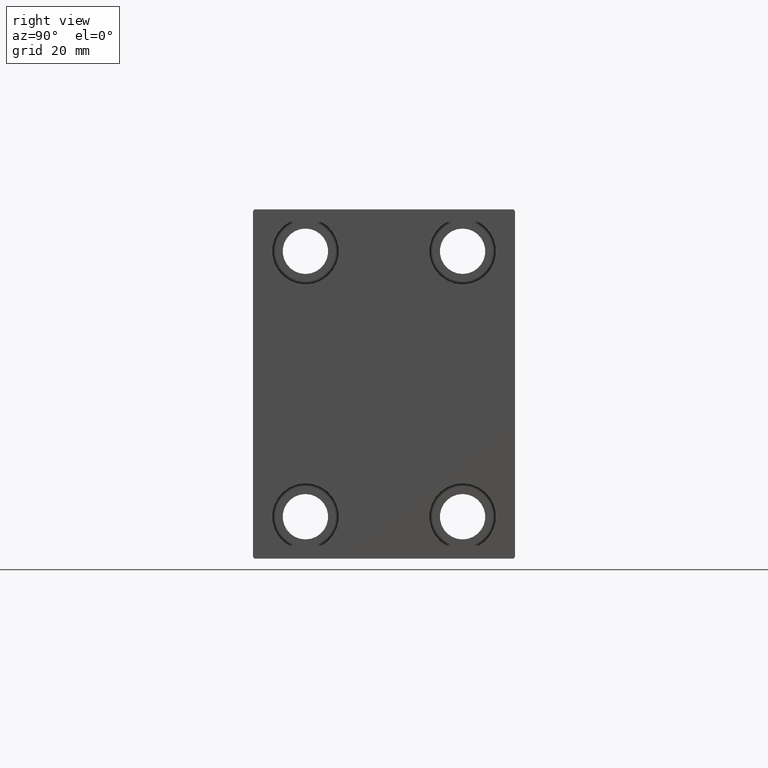
[diagram: clean part render]
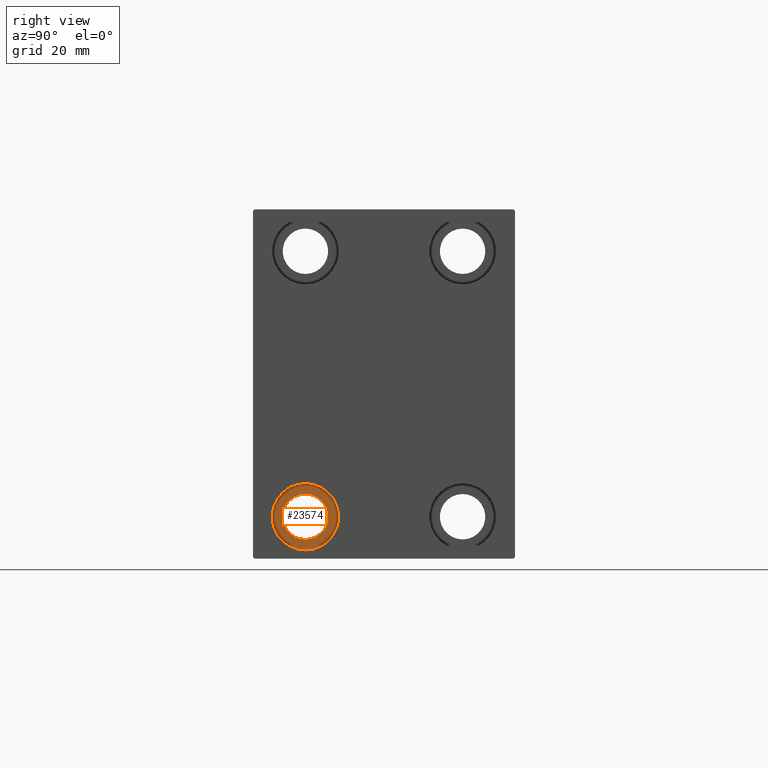
[diagram: same view with one face highlighted and labeled with its STEP entity id]
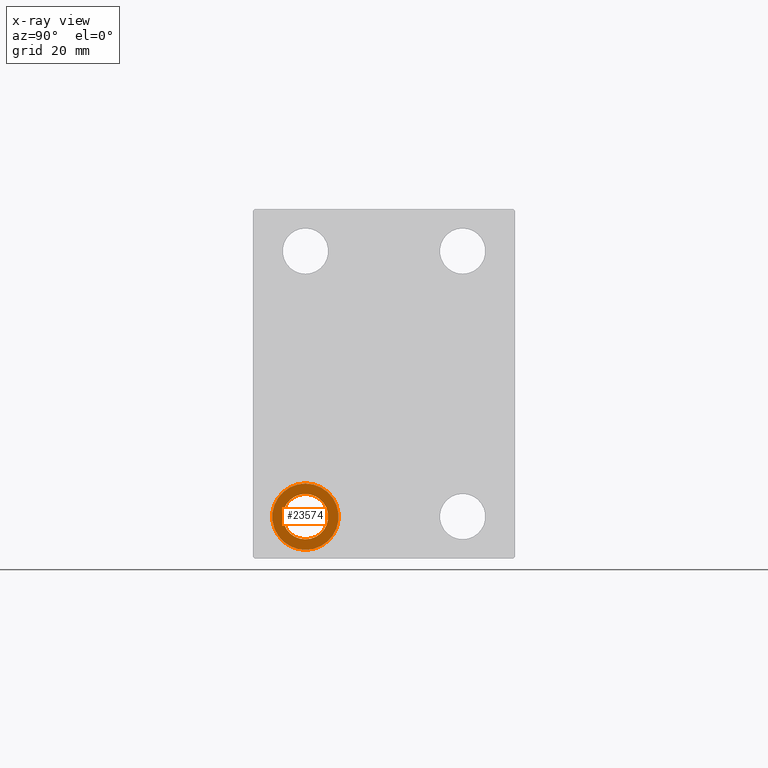
[diagram: x-ray of the same camera — body ghosted, the highlighted face saturated]
A machine part, right view. The second image highlights one B-rep face of the part: STEP entity #23574.
The next image is the same camera in x-ray: the body ghosted, the highlighted face saturated — about 0% of this face is hidden behind the body in this view.
In plain terms, the highlighted planar face has unit normal (1, 0, 0).
Its self-contained STEP definition (entity closure, byte-faithful):
#481 = EDGE_CURVE ( 'NONE', #7218, #21049, #41853, .T. ) ;
#998 = EDGE_CURVE ( 'NONE', #7786, #2786, #32295, .T. ) ;
#1530 = ORIENTED_EDGE ( 'NONE', *, *, #481, .F. ) ;
#1950 = PLANE ( 'NONE',  #33657 ) ;
#2786 = VERTEX_POINT ( 'NONE', #13735 ) ;
#3335 = ORIENTED_EDGE ( 'NONE', *, *, #33545, .F. ) ;
#3556 = AXIS2_PLACEMENT_3D ( 'NONE', #30080, #15761, #5386 ) ;
#4962 = DIRECTION ( 'NONE',  ( 1.000000000000000000, 0.000000000000000000, -0.000000000000000000 ) ) ;
#5386 = DIRECTION ( 'NONE',  ( 0.000000000000000000, 0.000000000000000000, 1.000000000000000000 ) ) ;
#7218 = VERTEX_POINT ( 'NONE', #33832 ) ;
#7786 = VERTEX_POINT ( 'NONE', #38031 ) ;
#9122 = FACE_OUTER_BOUND ( 'NONE', #30620, .T. ) ;
#13735 = CARTESIAN_POINT ( 'NONE',  ( 90.00000000000000000, -22.50000000000000711, -44.49999999999999289 ) ) ;
#15761 = DIRECTION ( 'NONE',  ( -1.000000000000000000, -0.000000000000000000, -0.000000000000000000 ) ) ;
#17930 = DIRECTION ( 'NONE',  ( 0.000000000000000000, 0.000000000000000000, 1.000000000000000000 ) ) ;
#18244 = AXIS2_PLACEMENT_3D ( 'NONE', #22161, #39724, #42976 ) ;
#18273 = CIRCLE ( 'NONE', #24163, 6.499999999999999112 ) ;
#20778 = EDGE_LOOP ( 'NONE', ( #42814, #31064 ) ) ;
#21049 = VERTEX_POINT ( 'NONE', #28850 ) ;
#21931 = AXIS2_PLACEMENT_3D ( 'NONE', #24398, #41736, #17930 ) ;
#22161 = CARTESIAN_POINT ( 'NONE',  ( 90.00000000000000000, -22.50000000000000711, -37.99999999999999289 ) ) ;
#23202 = DIRECTION ( 'NONE',  ( 0.000000000000000000, 0.000000000000000000, 1.000000000000000000 ) ) ;
#23478 = CIRCLE ( 'NONE', #3556, 9.500000000000001776 ) ;
#23574 = ADVANCED_FACE ( 'NONE', ( #9122, #29900 ), #1950, .T. ) ;
#24163 = AXIS2_PLACEMENT_3D ( 'NONE', #28810, #24435, #45451 ) ;
#24398 = CARTESIAN_POINT ( 'NONE',  ( 90.00000000000000000, -22.50000000000000711, -37.99999999999999289 ) ) ;
#24435 = DIRECTION ( 'NONE',  ( -1.000000000000000000, -0.000000000000000000, -0.000000000000000000 ) ) ;
#27476 = EDGE_CURVE ( 'NONE', #2786, #7786, #18273, .T. ) ;
#28810 = CARTESIAN_POINT ( 'NONE',  ( 90.00000000000000000, -22.50000000000000711, -37.99999999999999289 ) ) ;
#28850 = CARTESIAN_POINT ( 'NONE',  ( 90.00000000000000000, -22.50000000000000711, -28.49999999999998934 ) ) ;
#29676 = CARTESIAN_POINT ( 'NONE',  ( 90.00000000000000000, 0.000000000000000000, 0.000000000000000000 ) ) ;
#29900 = FACE_BOUND ( 'NONE', #20778, .T. ) ;
#30080 = CARTESIAN_POINT ( 'NONE',  ( 90.00000000000000000, -22.50000000000000711, -37.99999999999999289 ) ) ;
#30620 = EDGE_LOOP ( 'NONE', ( #1530, #3335 ) ) ;
#31064 = ORIENTED_EDGE ( 'NONE', *, *, #27476, .T. ) ;
#32295 = CIRCLE ( 'NONE', #18244, 6.499999999999999112 ) ;
#33545 = EDGE_CURVE ( 'NONE', #21049, #7218, #23478, .T. ) ;
#33657 = AXIS2_PLACEMENT_3D ( 'NONE', #29676, #4962, #23202 ) ;
#33832 = CARTESIAN_POINT ( 'NONE',  ( 90.00000000000000000, -22.50000000000000711, -47.49999999999999289 ) ) ;
#38031 = CARTESIAN_POINT ( 'NONE',  ( 90.00000000000000000, -22.50000000000000711, -31.49999999999999289 ) ) ;
#39724 = DIRECTION ( 'NONE',  ( -1.000000000000000000, -0.000000000000000000, -0.000000000000000000 ) ) ;
#41736 = DIRECTION ( 'NONE',  ( -1.000000000000000000, -0.000000000000000000, -0.000000000000000000 ) ) ;
#41853 = CIRCLE ( 'NONE', #21931, 9.500000000000001776 ) ;
#42814 = ORIENTED_EDGE ( 'NONE', *, *, #998, .T. ) ;
#42976 = DIRECTION ( 'NONE',  ( 0.000000000000000000, 0.000000000000000000, -1.000000000000000000 ) ) ;
#45451 = DIRECTION ( 'NONE',  ( 0.000000000000000000, 0.000000000000000000, -1.000000000000000000 ) ) ;